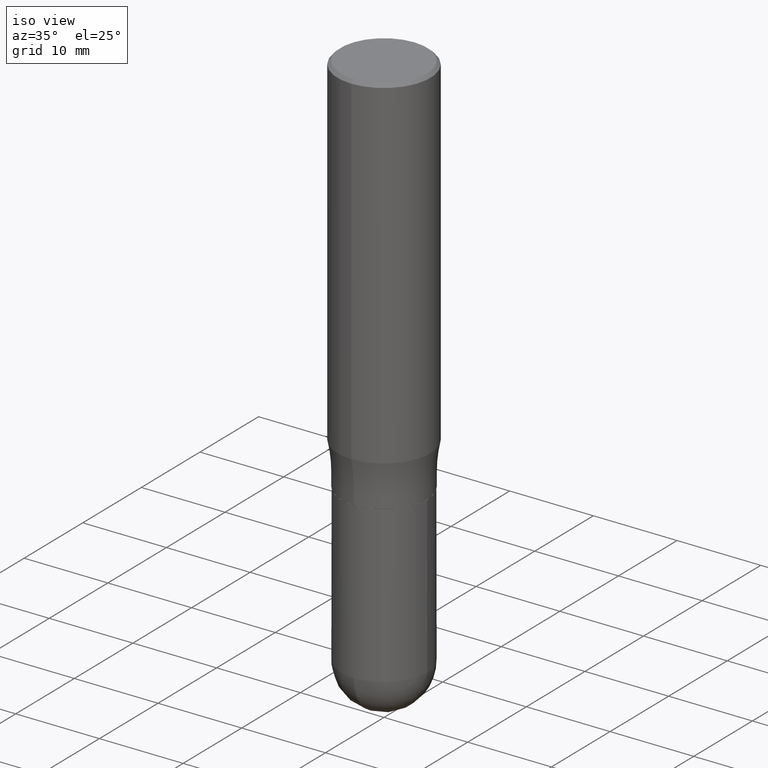
[diagram: clean part render]
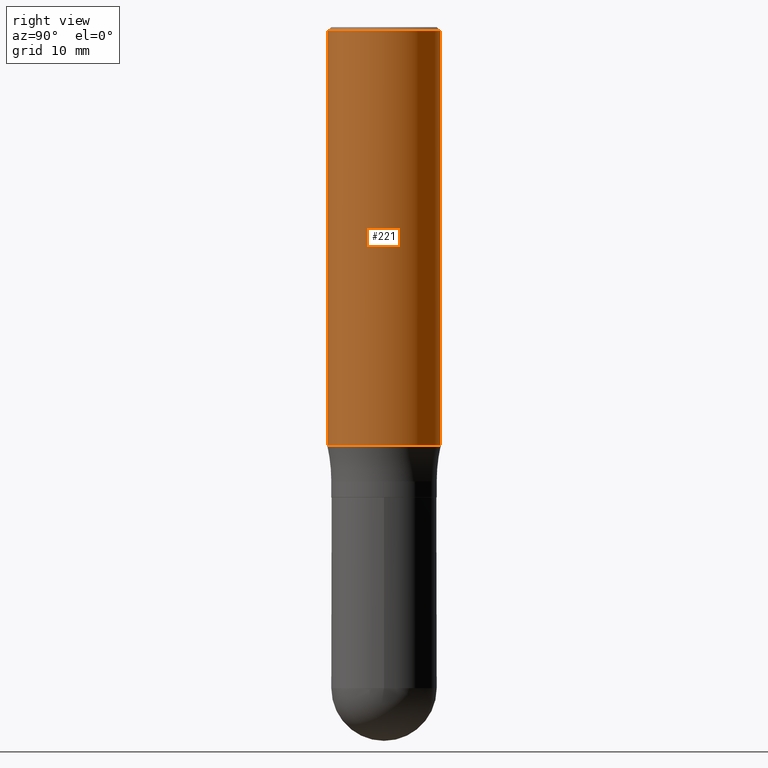
[diagram: tour spotlight — one face highlighted and labeled with its STEP entity id]
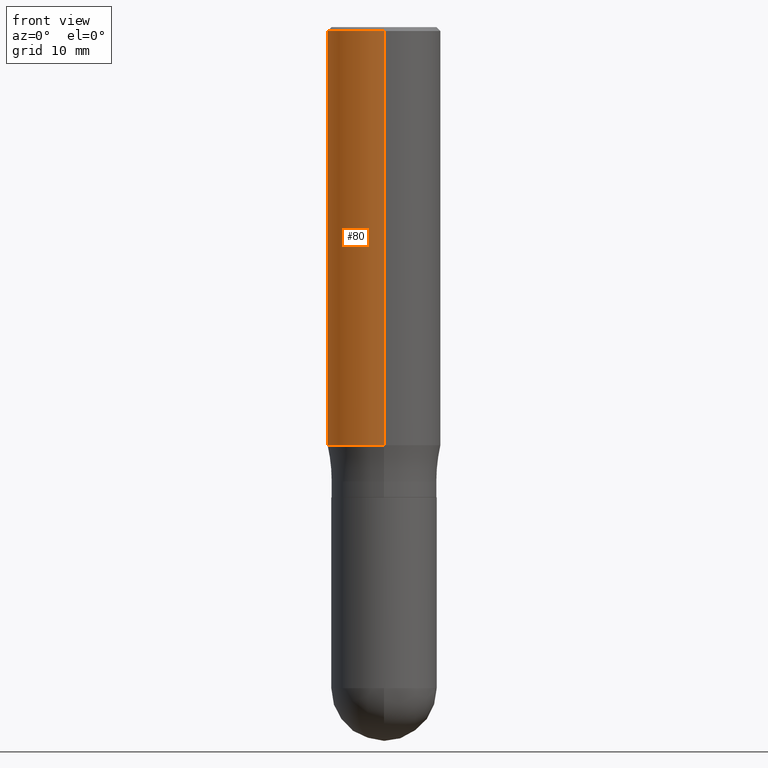
[diagram: tour spotlight — one face highlighted and labeled with its STEP entity id]
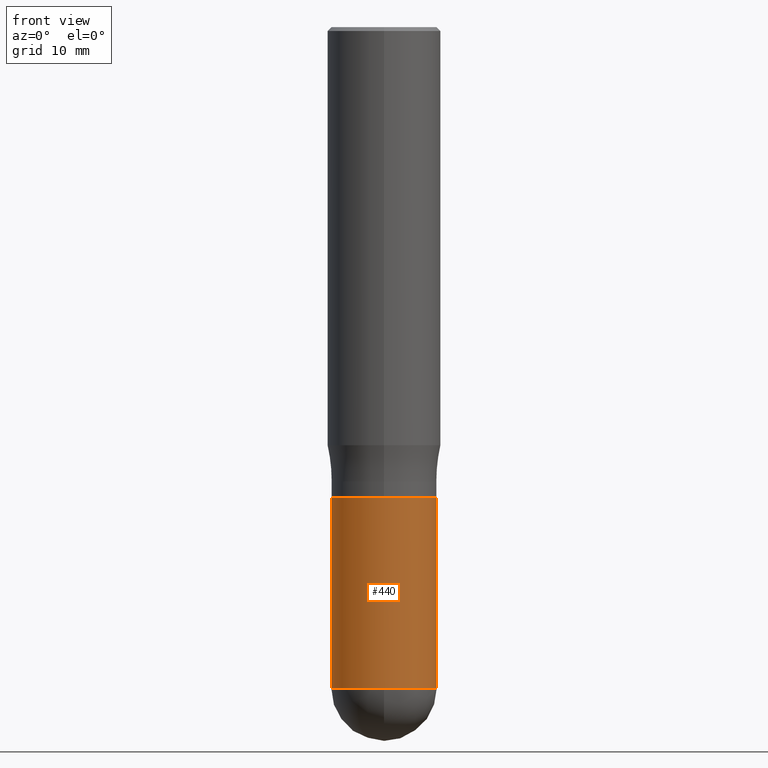
[diagram: tour spotlight — one face highlighted and labeled with its STEP entity id]
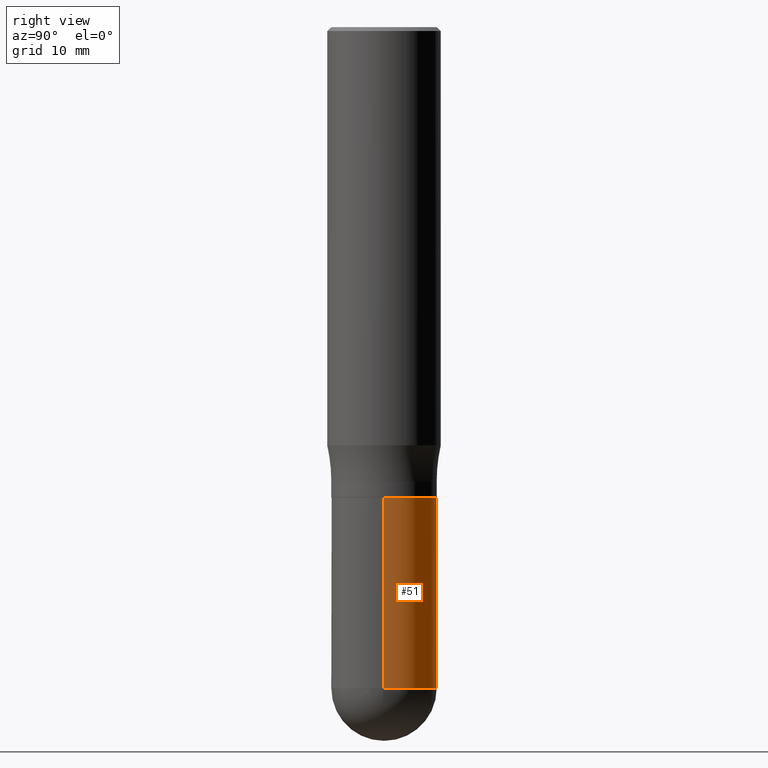
[diagram: tour spotlight — one face highlighted and labeled with its STEP entity id]
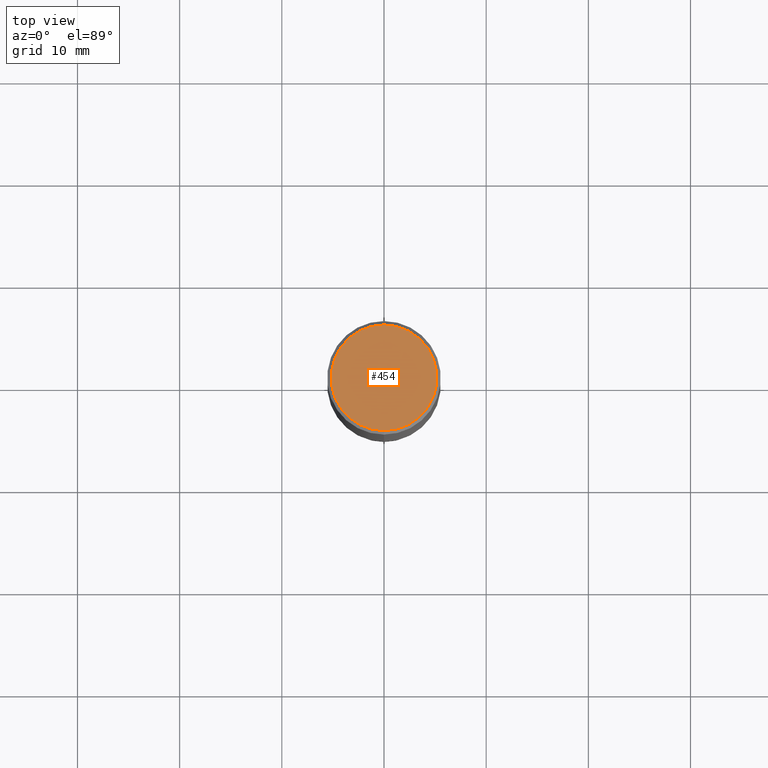
[diagram: tour spotlight — one face highlighted and labeled with its STEP entity id]
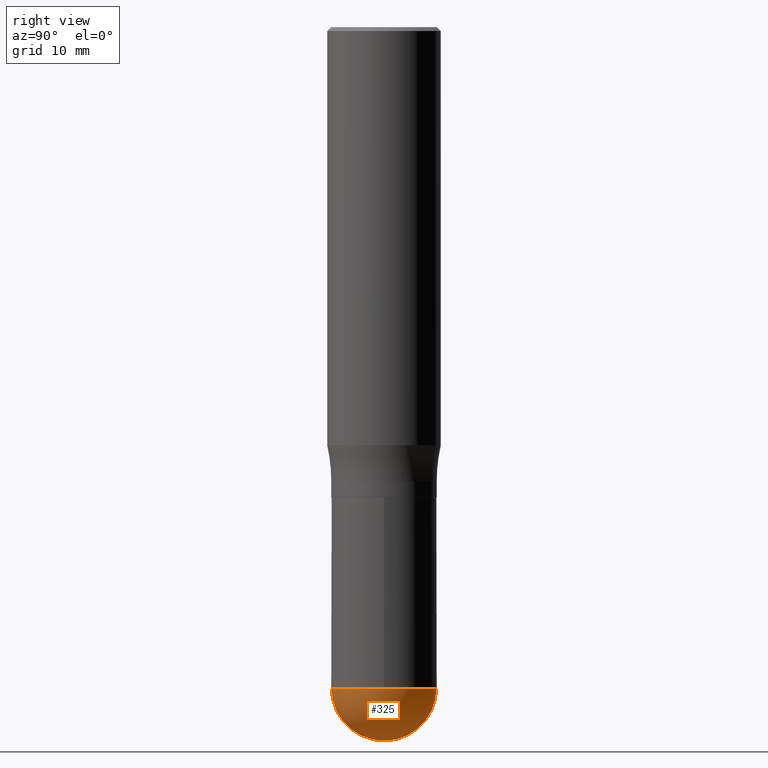
[diagram: tour spotlight — one face highlighted and labeled with its STEP entity id]
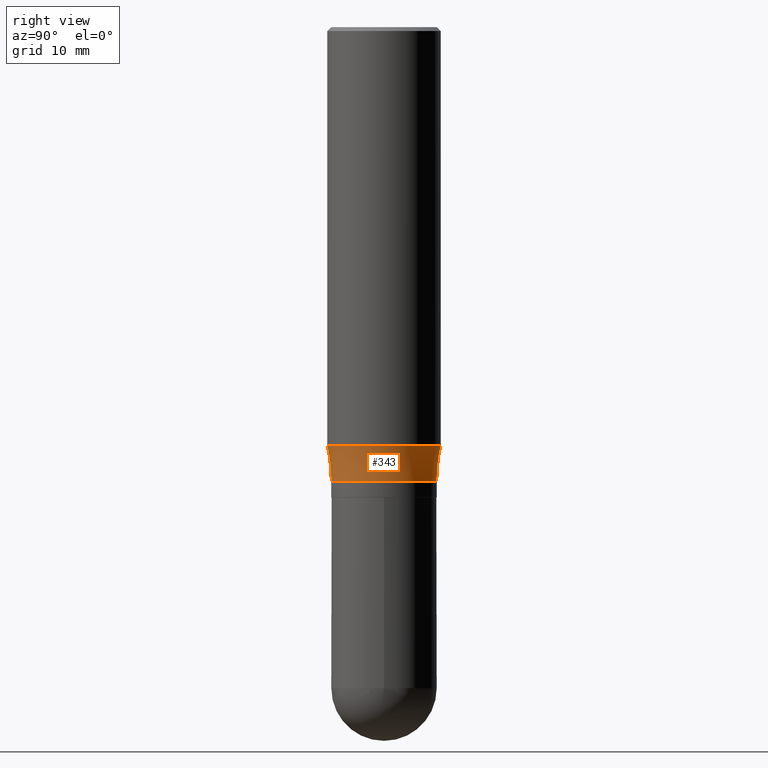
[diagram: tour spotlight — one face highlighted and labeled with its STEP entity id]
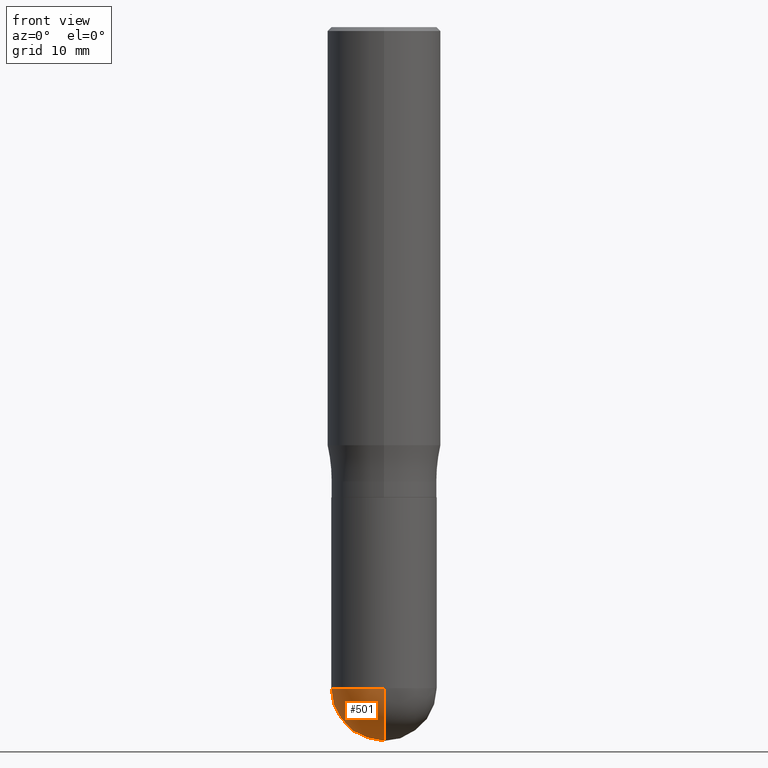
[diagram: tour spotlight — one face highlighted and labeled with its STEP entity id]
A machine part: a face-by-face anatomy tour. The part has 17 B-rep faces; the first image is the clean iso view, then the 8 largest visible faces are spotlighted one at a time (largest first), each with its STEP entity span.

Face 1 — right view, entity #221. In plain terms, the highlighted cylindrical surface (partial cylindrical patch) has radius 5.5562 mm, axis along (-0, 0, 1).
Definition (entity closure, byte-faithful):
#6 = VERTEX_POINT ( 'NONE', #283 ) ;
#11 = CARTESIAN_POINT ( 'NONE',  ( 0.000000000000000000, 0.000000000000000000, 0.000000000000000000 ) ) ;
#22 = DIRECTION ( 'NONE',  ( -2.444718999452591209E-29, 3.492555104760499256E-15, 1.000000000000000000 ) ) ;
#23 = ORIENTED_EDGE ( 'NONE', *, *, #174, .F. ) ;
#27 = DIRECTION ( 'NONE',  ( -2.444718999452591209E-29, 3.492555104760499256E-15, 1.000000000000000000 ) ) ;
#35 = EDGE_CURVE ( 'NONE', #187, #408, #378, .T. ) ;
#53 = DIRECTION ( 'NONE',  ( -2.444718999452591209E-29, 3.492555104760499256E-15, 1.000000000000000000 ) ) ;
#104 = ORIENTED_EDGE ( 'NONE', *, *, #494, .F. ) ;
#112 = EDGE_CURVE ( 'NONE', #408, #349, #193, .T. ) ;
#132 = AXIS2_PLACEMENT_3D ( 'NONE', #487, #53, #210 ) ;
#174 = EDGE_CURVE ( 'NONE', #187, #6, #388, .T. ) ;
#187 = VERTEX_POINT ( 'NONE', #435 ) ;
#193 = LINE ( 'NONE', #356, #340 ) ;
#201 = FACE_OUTER_BOUND ( 'NONE', #502, .T. ) ;
#207 = CARTESIAN_POINT ( 'NONE',  ( 1.527523085743871040E-15, 0.2187499999999999167, -0.01500000000000183478 ) ) ;
#210 = DIRECTION ( 'NONE',  ( -6.982962677686265922E-15, -1.000000000000000000, 3.746534391310990346E-15 ) ) ;
#221 = ADVANCED_FACE ( 'NONE', ( #201 ), #363, .T. ) ;
#235 = CARTESIAN_POINT ( 'NONE',  ( -1.527523085743870251E-15, -0.2187499999999999445, 7.639964291663590521E-16 ) ) ;
#246 = DIRECTION ( 'NONE',  ( -2.444718999452591209E-29, 3.492555104760499256E-15, 1.000000000000000000 ) ) ;
#271 = AXIS2_PLACEMENT_3D ( 'NONE', #11, #246, #405 ) ;
#272 = VECTOR ( 'NONE', #27, 39.37007874015748143 ) ;
#276 = DIRECTION ( 'NONE',  ( -2.444718999452591209E-29, 3.492555104760499256E-15, 1.000000000000000000 ) ) ;
#283 = CARTESIAN_POINT ( 'NONE',  ( -1.500733937012521740E-15, -0.2187500000000000555, -0.01500000000000030823 ) ) ;
#316 = CARTESIAN_POINT ( 'NONE',  ( 3.667078499179149276E-31, -5.238832657141123027E-17, -0.01500000000000107150 ) ) ;
#333 = AXIS2_PLACEMENT_3D ( 'NONE', #316, #22, #424 ) ;
#340 = VECTOR ( 'NONE', #276, 39.37007874015748143 ) ;
#349 = VERTEX_POINT ( 'NONE', #207 ) ;
#356 = CARTESIAN_POINT ( 'NONE',  ( 1.554312234475218565E-15, 0.2187499999999999445, -7.639964291663590521E-16 ) ) ;
#363 = CYLINDRICAL_SURFACE ( 'NONE', #271, 0.2187499999999999445 ) ;
#378 = CIRCLE ( 'NONE', #132, 0.2187499999999999445 ) ;
#388 = LINE ( 'NONE', #235, #272 ) ;
#390 = ORIENTED_EDGE ( 'NONE', *, *, #35, .T. ) ;
#405 = DIRECTION ( 'NONE',  ( -6.982962677686265922E-15, -1.000000000000000000, 3.492555104760499256E-15 ) ) ;
#408 = VERTEX_POINT ( 'NONE', #457 ) ;
#421 = CIRCLE ( 'NONE', #333, 0.2187500000000000000 ) ;
#424 = DIRECTION ( 'NONE',  ( -6.982962677686265133E-15, -1.000000000000000000, 3.492862791899308071E-15 ) ) ;
#435 = CARTESIAN_POINT ( 'NONE',  ( -1.527523085743830611E-15, -0.2187500000000055511, -1.611012311696324639 ) ) ;
#457 = CARTESIAN_POINT ( 'NONE',  ( 1.554312234475258205E-15, 0.2187499999999942824, -1.611012311696326194 ) ) ;
#476 = ORIENTED_EDGE ( 'NONE', *, *, #112, .T. ) ;
#487 = CARTESIAN_POINT ( 'NONE',  ( 3.938472406756047000E-29, -5.626549273047013922E-15, -1.611012311696325527 ) ) ;
#494 = EDGE_CURVE ( 'NONE', #6, #349, #421, .T. ) ;
#502 = EDGE_LOOP ( 'NONE', ( #390, #476, #104, #23 ) ) ;

Face 2 — front view, entity #80. In plain terms, the highlighted cylindrical surface (partial cylindrical patch) has radius 5.5562 mm, axis along (-0, 0, 1).
Definition (entity closure, byte-faithful):
#6 = VERTEX_POINT ( 'NONE', #283 ) ;
#12 = DIRECTION ( 'NONE',  ( -6.982962677686265133E-15, -1.000000000000000000, 3.492862791899308071E-15 ) ) ;
#17 = EDGE_CURVE ( 'NONE', #349, #6, #387, .T. ) ;
#21 = AXIS2_PLACEMENT_3D ( 'NONE', #362, #83, #364 ) ;
#27 = DIRECTION ( 'NONE',  ( -2.444718999452591209E-29, 3.492555104760499256E-15, 1.000000000000000000 ) ) ;
#32 = AXIS2_PLACEMENT_3D ( 'NONE', #56, #374, #377 ) ;
#37 = ORIENTED_EDGE ( 'NONE', *, *, #174, .T. ) ;
#40 = CYLINDRICAL_SURFACE ( 'NONE', #21, 0.2187499999999999445 ) ;
#56 = CARTESIAN_POINT ( 'NONE',  ( 3.938472406756047000E-29, -5.626549273047013922E-15, -1.611012311696325527 ) ) ;
#80 = ADVANCED_FACE ( 'NONE', ( #203 ), #40, .T. ) ;
#83 = DIRECTION ( 'NONE',  ( -2.444718999452591209E-29, 3.492555104760499256E-15, 1.000000000000000000 ) ) ;
#112 = EDGE_CURVE ( 'NONE', #408, #349, #193, .T. ) ;
#118 = DIRECTION ( 'NONE',  ( -2.444718999452591209E-29, 3.492555104760499256E-15, 1.000000000000000000 ) ) ;
#163 = CARTESIAN_POINT ( 'NONE',  ( 3.667078499179149276E-31, -5.238832657141123027E-17, -0.01500000000000107150 ) ) ;
#170 = AXIS2_PLACEMENT_3D ( 'NONE', #163, #118, #12 ) ;
#174 = EDGE_CURVE ( 'NONE', #187, #6, #388, .T. ) ;
#187 = VERTEX_POINT ( 'NONE', #435 ) ;
#193 = LINE ( 'NONE', #356, #340 ) ;
#203 = FACE_OUTER_BOUND ( 'NONE', #318, .T. ) ;
#204 = ORIENTED_EDGE ( 'NONE', *, *, #17, .F. ) ;
#207 = CARTESIAN_POINT ( 'NONE',  ( 1.527523085743871040E-15, 0.2187499999999999167, -0.01500000000000183478 ) ) ;
#235 = CARTESIAN_POINT ( 'NONE',  ( -1.527523085743870251E-15, -0.2187499999999999445, 7.639964291663590521E-16 ) ) ;
#248 = CIRCLE ( 'NONE', #32, 0.2187499999999999445 ) ;
#264 = ORIENTED_EDGE ( 'NONE', *, *, #419, .T. ) ;
#272 = VECTOR ( 'NONE', #27, 39.37007874015748143 ) ;
#275 = ORIENTED_EDGE ( 'NONE', *, *, #112, .F. ) ;
#276 = DIRECTION ( 'NONE',  ( -2.444718999452591209E-29, 3.492555104760499256E-15, 1.000000000000000000 ) ) ;
#283 = CARTESIAN_POINT ( 'NONE',  ( -1.500733937012521740E-15, -0.2187500000000000555, -0.01500000000000030823 ) ) ;
#318 = EDGE_LOOP ( 'NONE', ( #275, #264, #37, #204 ) ) ;
#340 = VECTOR ( 'NONE', #276, 39.37007874015748143 ) ;
#349 = VERTEX_POINT ( 'NONE', #207 ) ;
#356 = CARTESIAN_POINT ( 'NONE',  ( 1.554312234475218565E-15, 0.2187499999999999445, -7.639964291663590521E-16 ) ) ;
#362 = CARTESIAN_POINT ( 'NONE',  ( 0.000000000000000000, 0.000000000000000000, 0.000000000000000000 ) ) ;
#364 = DIRECTION ( 'NONE',  ( -6.982962677686265922E-15, -1.000000000000000000, 3.492555104760499256E-15 ) ) ;
#374 = DIRECTION ( 'NONE',  ( -2.444718999452591209E-29, 3.492555104760499256E-15, 1.000000000000000000 ) ) ;
#377 = DIRECTION ( 'NONE',  ( -6.982962677686265922E-15, -1.000000000000000000, 3.746534391310990346E-15 ) ) ;
#387 = CIRCLE ( 'NONE', #170, 0.2187500000000000000 ) ;
#388 = LINE ( 'NONE', #235, #272 ) ;
#408 = VERTEX_POINT ( 'NONE', #457 ) ;
#419 = EDGE_CURVE ( 'NONE', #408, #187, #248, .T. ) ;
#435 = CARTESIAN_POINT ( 'NONE',  ( -1.527523085743830611E-15, -0.2187500000000055511, -1.611012311696324639 ) ) ;
#457 = CARTESIAN_POINT ( 'NONE',  ( 1.554312234475258205E-15, 0.2187499999999942824, -1.611012311696326194 ) ) ;

Face 3 — front view, entity #440. In plain terms, the highlighted cylindrical surface (partial cylindrical patch) has radius 5.1587 mm, axis along (-0, 0, 1).
Definition (entity closure, byte-faithful):
#5 = CARTESIAN_POINT ( 'NONE',  ( 0.2031000000000000583, -7.744803905821861355E-15, -1.812000000000000055 ) ) ;
#13 = AXIS2_PLACEMENT_3D ( 'NONE', #95, #20, #57 ) ;
#18 = VECTOR ( 'NONE', #131, 39.37007874015748143 ) ;
#20 = DIRECTION ( 'NONE',  ( -2.445468806185136597E-29, 3.491481338843145583E-15, 1.000000000000000000 ) ) ;
#28 = ORIENTED_EDGE ( 'NONE', *, *, #91, .T. ) ;
#39 = CARTESIAN_POINT ( 'NONE',  ( -0.2031000000000000583, -6.166396707612929754E-15, -1.812000000000000055 ) ) ;
#44 = ORIENTED_EDGE ( 'NONE', *, *, #361, .T. ) ;
#50 = VERTEX_POINT ( 'NONE', #93 ) ;
#57 = DIRECTION ( 'NONE',  ( 1.000000000000000000, -6.982962677686262766E-15, 0.000000000000000000 ) ) ;
#74 = LINE ( 'NONE', #238, #96 ) ;
#91 = EDGE_CURVE ( 'NONE', #50, #508, #469, .T. ) ;
#93 = CARTESIAN_POINT ( 'NONE',  ( -0.2031000000000000583, -6.166396707612929754E-15, -2.546899999999999942 ) ) ;
#95 = CARTESIAN_POINT ( 'NONE',  ( 6.228364502472924746E-29, -8.892453821899607499E-15, -2.546899999999999942 ) ) ;
#96 = VECTOR ( 'NONE', #186, 39.37007874015748143 ) ;
#108 = ORIENTED_EDGE ( 'NONE', *, *, #368, .F. ) ;
#131 = DIRECTION ( 'NONE',  ( -2.445468806185136877E-29, 3.491481338843145188E-15, 1.000000000000000000 ) ) ;
#141 = EDGE_LOOP ( 'NONE', ( #320, #28, #382, #44, #108 ) ) ;
#186 = DIRECTION ( 'NONE',  ( -2.445468806185136877E-29, 3.491481338843145188E-15, 1.000000000000000000 ) ) ;
#200 = CIRCLE ( 'NONE', #466, 0.2031000000000000583 ) ;
#202 = EDGE_CURVE ( 'NONE', #50, #226, #74, .T. ) ;
#213 = FACE_OUTER_BOUND ( 'NONE', #141, .T. ) ;
#220 = CARTESIAN_POINT ( 'NONE',  ( 0.2031000000000000583, -9.027748723779773632E-15, -2.546899999999999942 ) ) ;
#226 = VERTEX_POINT ( 'NONE', #39 ) ;
#238 = CARTESIAN_POINT ( 'NONE',  ( -0.2031000000000000583, 1.443112296328763891E-15, -9.990357168307717005E-30 ) ) ;
#247 = CIRCLE ( 'NONE', #13, 0.2031000000000000583 ) ;
#278 = VERTEX_POINT ( 'NONE', #5 ) ;
#291 = AXIS2_PLACEMENT_3D ( 'NONE', #420, #301, #491 ) ;
#301 = DIRECTION ( 'NONE',  ( -2.445468806185136597E-29, 3.491481338843145583E-15, 1.000000000000000000 ) ) ;
#314 = AXIS2_PLACEMENT_3D ( 'NONE', #329, #433, #511 ) ;
#320 = ORIENTED_EDGE ( 'NONE', *, *, #202, .F. ) ;
#329 = CARTESIAN_POINT ( 'NONE',  ( 6.228364502472924746E-29, -8.892453821899607499E-15, -2.546899999999999942 ) ) ;
#361 = EDGE_CURVE ( 'NONE', #431, #278, #453, .T. ) ;
#368 = EDGE_CURVE ( 'NONE', #226, #278, #200, .T. ) ;
#375 = EDGE_CURVE ( 'NONE', #508, #431, #247, .T. ) ;
#382 = ORIENTED_EDGE ( 'NONE', *, *, #375, .T. ) ;
#420 = CARTESIAN_POINT ( 'NONE',  ( 0.000000000000000000, 0.000000000000000000, 0.000000000000000000 ) ) ;
#427 = CARTESIAN_POINT ( 'NONE',  ( -1.443112296328701966E-15, -0.2031000000000090233, -2.546899999999999498 ) ) ;
#431 = VERTEX_POINT ( 'NONE', #220 ) ;
#433 = DIRECTION ( 'NONE',  ( -2.445468806185136597E-29, 3.491481338843145583E-15, 1.000000000000000000 ) ) ;
#440 = ADVANCED_FACE ( 'NONE', ( #213 ), #456, .T. ) ;
#453 = LINE ( 'NONE', #493, #18 ) ;
#456 = CYLINDRICAL_SURFACE ( 'NONE', #291, 0.2031000000000000583 ) ;
#458 = DIRECTION ( 'NONE',  ( -2.445468806185136597E-29, 3.491481338843145583E-15, 1.000000000000000000 ) ) ;
#461 = CARTESIAN_POINT ( 'NONE',  ( 4.431189476807467280E-29, -6.326564185983779791E-15, -1.812000000000000055 ) ) ;
#466 = AXIS2_PLACEMENT_3D ( 'NONE', #461, #458, #495 ) ;
#469 = CIRCLE ( 'NONE', #314, 0.2031000000000000583 ) ;
#491 = DIRECTION ( 'NONE',  ( 1.000000000000000000, -6.982962677686265922E-15, 4.876176775795935232E-29 ) ) ;
#493 = CARTESIAN_POINT ( 'NONE',  ( 0.2031000000000000583, -1.418239719838080972E-15, 9.903515031641547546E-30 ) ) ;
#495 = DIRECTION ( 'NONE',  ( 1.000000000000000000, -6.982962677686267499E-15, 0.000000000000000000 ) ) ;
#508 = VERTEX_POINT ( 'NONE', #427 ) ;
#511 = DIRECTION ( 'NONE',  ( 1.000000000000000000, -6.982962677686262766E-15, 0.000000000000000000 ) ) ;

Face 4 — right view, entity #51. In plain terms, the highlighted cylindrical surface (partial cylindrical patch) has radius 5.1587 mm, axis along (-0, 0, 1).
Definition (entity closure, byte-faithful):
#5 = CARTESIAN_POINT ( 'NONE',  ( 0.2031000000000000583, -7.744803905821861355E-15, -1.812000000000000055 ) ) ;
#15 = DIRECTION ( 'NONE',  ( 1.000000000000000000, -6.982962677686265922E-15, 4.876176775795935232E-29 ) ) ;
#16 = CARTESIAN_POINT ( 'NONE',  ( 6.228364502472924746E-29, -8.892453821899607499E-15, -2.546899999999999942 ) ) ;
#18 = VECTOR ( 'NONE', #131, 39.37007874015748143 ) ;
#39 = CARTESIAN_POINT ( 'NONE',  ( -0.2031000000000000583, -6.166396707612929754E-15, -1.812000000000000055 ) ) ;
#49 = DIRECTION ( 'NONE',  ( -2.445468806185136597E-29, 3.491481338843145583E-15, 1.000000000000000000 ) ) ;
#50 = VERTEX_POINT ( 'NONE', #93 ) ;
#51 = ADVANCED_FACE ( 'NONE', ( #288 ), #415, .T. ) ;
#72 = CIRCLE ( 'NONE', #297, 0.2031000000000000583 ) ;
#74 = LINE ( 'NONE', #238, #96 ) ;
#93 = CARTESIAN_POINT ( 'NONE',  ( -0.2031000000000000583, -6.166396707612929754E-15, -2.546899999999999942 ) ) ;
#96 = VECTOR ( 'NONE', #186, 39.37007874015748143 ) ;
#125 = DIRECTION ( 'NONE',  ( 1.000000000000000000, -6.982962677686267499E-15, 0.000000000000000000 ) ) ;
#131 = DIRECTION ( 'NONE',  ( -2.445468806185136877E-29, 3.491481338843145188E-15, 1.000000000000000000 ) ) ;
#143 = ORIENTED_EDGE ( 'NONE', *, *, #423, .T. ) ;
#152 = CARTESIAN_POINT ( 'NONE',  ( 4.431189476807467280E-29, -6.326564185983779791E-15, -1.812000000000000055 ) ) ;
#173 = DIRECTION ( 'NONE',  ( -2.445468806185136597E-29, 3.491481338843145583E-15, 1.000000000000000000 ) ) ;
#180 = CARTESIAN_POINT ( 'NONE',  ( 6.228364502472924746E-29, -8.892453821899607499E-15, -2.546899999999999942 ) ) ;
#186 = DIRECTION ( 'NONE',  ( -2.445468806185136877E-29, 3.491481338843145188E-15, 1.000000000000000000 ) ) ;
#199 = CARTESIAN_POINT ( 'NONE',  ( 0.000000000000000000, 0.000000000000000000, 0.000000000000000000 ) ) ;
#202 = EDGE_CURVE ( 'NONE', #50, #226, #74, .T. ) ;
#220 = CARTESIAN_POINT ( 'NONE',  ( 0.2031000000000000583, -9.027748723779773632E-15, -2.546899999999999942 ) ) ;
#223 = ORIENTED_EDGE ( 'NONE', *, *, #335, .F. ) ;
#226 = VERTEX_POINT ( 'NONE', #39 ) ;
#238 = CARTESIAN_POINT ( 'NONE',  ( -0.2031000000000000583, 1.443112296328763891E-15, -9.990357168307717005E-30 ) ) ;
#253 = ORIENTED_EDGE ( 'NONE', *, *, #361, .F. ) ;
#255 = DIRECTION ( 'NONE',  ( -2.445468806185136597E-29, 3.491481338843145583E-15, 1.000000000000000000 ) ) ;
#278 = VERTEX_POINT ( 'NONE', #5 ) ;
#288 = FACE_OUTER_BOUND ( 'NONE', #330, .T. ) ;
#297 = AXIS2_PLACEMENT_3D ( 'NONE', #152, #49, #125 ) ;
#310 = CIRCLE ( 'NONE', #447, 0.2031000000000000583 ) ;
#330 = EDGE_LOOP ( 'NONE', ( #143, #385, #223, #253, #465 ) ) ;
#335 = EDGE_CURVE ( 'NONE', #278, #226, #72, .T. ) ;
#344 = DIRECTION ( 'NONE',  ( 1.000000000000000000, -6.982962677686262766E-15, 0.000000000000000000 ) ) ;
#345 = DIRECTION ( 'NONE',  ( 1.000000000000000000, -6.982962677686262766E-15, 0.000000000000000000 ) ) ;
#355 = EDGE_CURVE ( 'NONE', #431, #499, #460, .T. ) ;
#361 = EDGE_CURVE ( 'NONE', #431, #278, #453, .T. ) ;
#385 = ORIENTED_EDGE ( 'NONE', *, *, #202, .T. ) ;
#407 = AXIS2_PLACEMENT_3D ( 'NONE', #199, #255, #15 ) ;
#415 = CYLINDRICAL_SURFACE ( 'NONE', #407, 0.2031000000000000583 ) ;
#423 = EDGE_CURVE ( 'NONE', #499, #50, #310, .T. ) ;
#430 = AXIS2_PLACEMENT_3D ( 'NONE', #180, #489, #345 ) ;
#431 = VERTEX_POINT ( 'NONE', #220 ) ;
#447 = AXIS2_PLACEMENT_3D ( 'NONE', #16, #173, #344 ) ;
#453 = LINE ( 'NONE', #493, #18 ) ;
#460 = CIRCLE ( 'NONE', #430, 0.2031000000000000583 ) ;
#465 = ORIENTED_EDGE ( 'NONE', *, *, #355, .T. ) ;
#489 = DIRECTION ( 'NONE',  ( -2.445468806185136597E-29, 3.491481338843145583E-15, 1.000000000000000000 ) ) ;
#493 = CARTESIAN_POINT ( 'NONE',  ( 0.2031000000000000583, -1.418239719838080972E-15, 9.903515031641547546E-30 ) ) ;
#499 = VERTEX_POINT ( 'NONE', #510 ) ;
#510 = CARTESIAN_POINT ( 'NONE',  ( 1.418239719838143884E-15, 0.2030999999999912597, -2.546900000000000830 ) ) ;

Face 5 — top view, entity #454. In plain terms, the highlighted planar face has unit normal (0, -0, -1).
Definition (entity closure, byte-faithful):
#34 = VERTEX_POINT ( 'NONE', #338 ) ;
#55 = DIRECTION ( 'NONE',  ( -2.444718999452591209E-29, 3.492555104760499256E-15, 1.000000000000000000 ) ) ;
#61 = DIRECTION ( 'NONE',  ( 2.444718999452590928E-29, -3.492555104760499256E-15, -1.000000000000000000 ) ) ;
#99 = FACE_OUTER_BOUND ( 'NONE', #273, .T. ) ;
#134 = DIRECTION ( 'NONE',  ( -6.982962677686265133E-15, -1.000000000000000000, 3.492555104760498862E-15 ) ) ;
#144 = EDGE_CURVE ( 'NONE', #34, #350, #376, .T. ) ;
#183 = ORIENTED_EDGE ( 'NONE', *, *, #144, .T. ) ;
#189 = CARTESIAN_POINT ( 'NONE',  ( 2.620031829638276978E-44, -3.743009132455350096E-30, -1.071710830661904651E-15 ) ) ;
#261 = PLANE ( 'NONE',  #505 ) ;
#266 = AXIS2_PLACEMENT_3D ( 'NONE', #189, #506, #470 ) ;
#273 = EDGE_LOOP ( 'NONE', ( #370, #183 ) ) ;
#299 = CARTESIAN_POINT ( 'NONE',  ( 2.620031829638276978E-44, -3.743009132455350096E-30, -1.071710830661904651E-15 ) ) ;
#338 = CARTESIAN_POINT ( 'NONE',  ( -1.449280202029235538E-15, -0.2037499999999999867, -3.601027280669530270E-16 ) ) ;
#341 = CARTESIAN_POINT ( 'NONE',  ( 1.475150865661223764E-15, 0.2037499999999999867, -1.783318933256856177E-15 ) ) ;
#350 = VERTEX_POINT ( 'NONE', #341 ) ;
#351 = DIRECTION ( 'NONE',  ( 6.982962677686265922E-15, 1.000000000000000000, -3.492555104760499256E-15 ) ) ;
#353 = AXIS2_PLACEMENT_3D ( 'NONE', #299, #55, #134 ) ;
#370 = ORIENTED_EDGE ( 'NONE', *, *, #389, .T. ) ;
#376 = CIRCLE ( 'NONE', #266, 0.2037499999999999867 ) ;
#389 = EDGE_CURVE ( 'NONE', #350, #34, #467, .T. ) ;
#422 = CARTESIAN_POINT ( 'NONE',  ( 1.422778645578576487E-15, 0.2037499999999999867, -1.247463517925903950E-15 ) ) ;
#454 = ADVANCED_FACE ( 'NONE', ( #99 ), #261, .F. ) ;
#467 = CIRCLE ( 'NONE', #353, 0.2037499999999999867 ) ;
#470 = DIRECTION ( 'NONE',  ( -6.982962677686265133E-15, -1.000000000000000000, 3.492555104760498862E-15 ) ) ;
#505 = AXIS2_PLACEMENT_3D ( 'NONE', #422, #61, #351 ) ;
#506 = DIRECTION ( 'NONE',  ( -2.444718999452591209E-29, 3.492555104760499256E-15, 1.000000000000000000 ) ) ;

Face 6 — right view, entity #325. In plain terms, the highlighted spherical surface has radius 5.1587 mm.
Definition (entity closure, byte-faithful):
#9 = ORIENTED_EDGE ( 'NONE', *, *, #355, .F. ) ;
#13 = AXIS2_PLACEMENT_3D ( 'NONE', #95, #20, #57 ) ;
#20 = DIRECTION ( 'NONE',  ( -2.445468806185136597E-29, 3.491481338843145583E-15, 1.000000000000000000 ) ) ;
#45 = VERTEX_POINT ( 'NONE', #129 ) ;
#47 = CARTESIAN_POINT ( 'NONE',  ( 6.232375232369175849E-29, -8.886710228411606040E-15, -2.546899999999999942 ) ) ;
#57 = DIRECTION ( 'NONE',  ( 1.000000000000000000, -6.982962677686262766E-15, 0.000000000000000000 ) ) ;
#62 = ORIENTED_EDGE ( 'NONE', *, *, #317, .F. ) ;
#95 = CARTESIAN_POINT ( 'NONE',  ( 6.228364502472924746E-29, -8.892453821899607499E-15, -2.546899999999999942 ) ) ;
#109 = AXIS2_PLACEMENT_3D ( 'NONE', #47, #155, #319 ) ;
#121 = DIRECTION ( 'NONE',  ( -1.000000000000000000, 7.105427357601001070E-15, -4.926315508542082329E-29 ) ) ;
#129 = CARTESIAN_POINT ( 'NONE',  ( 6.737734160571993830E-29, -9.583393800085308814E-15, -2.750000000000000444 ) ) ;
#155 = DIRECTION ( 'NONE',  ( 1.000000000000000000, -6.982962677686265922E-15, 4.883557194083112340E-29 ) ) ;
#178 = CIRCLE ( 'NONE', #225, 0.2031000000000002248 ) ;
#180 = CARTESIAN_POINT ( 'NONE',  ( 6.228364502472924746E-29, -8.892453821899607499E-15, -2.546899999999999942 ) ) ;
#195 = CARTESIAN_POINT ( 'NONE',  ( 6.232375232369175849E-29, -8.886710228411606040E-15, -2.546899999999999942 ) ) ;
#211 = EDGE_CURVE ( 'NONE', #45, #499, #384, .T. ) ;
#220 = CARTESIAN_POINT ( 'NONE',  ( 0.2031000000000000583, -9.027748723779773632E-15, -2.546899999999999942 ) ) ;
#225 = AXIS2_PLACEMENT_3D ( 'NONE', #195, #121, #331 ) ;
#233 = ORIENTED_EDGE ( 'NONE', *, *, #211, .T. ) ;
#247 = CIRCLE ( 'NONE', #13, 0.2031000000000000583 ) ;
#282 = SPHERICAL_SURFACE ( 'NONE', #394, 0.2031000000000002248 ) ;
#285 = ORIENTED_EDGE ( 'NONE', *, *, #375, .F. ) ;
#287 = CARTESIAN_POINT ( 'NONE',  ( 6.232375232369175849E-29, -8.886710228411606040E-15, -2.546899999999999942 ) ) ;
#317 = EDGE_CURVE ( 'NONE', #45, #508, #178, .T. ) ;
#319 = DIRECTION ( 'NONE',  ( 6.982962677686265133E-15, 1.000000000000000000, 0.000000000000000000 ) ) ;
#325 = ADVANCED_FACE ( 'NONE', ( #358 ), #282, .T. ) ;
#331 = DIRECTION ( 'NONE',  ( -7.105427357601001070E-15, -1.000000000000000000, 0.000000000000000000 ) ) ;
#345 = DIRECTION ( 'NONE',  ( 1.000000000000000000, -6.982962677686262766E-15, 0.000000000000000000 ) ) ;
#355 = EDGE_CURVE ( 'NONE', #431, #499, #460, .T. ) ;
#358 = FACE_OUTER_BOUND ( 'NONE', #403, .T. ) ;
#375 = EDGE_CURVE ( 'NONE', #508, #431, #247, .T. ) ;
#384 = CIRCLE ( 'NONE', #109, 0.2031000000000002248 ) ;
#394 = AXIS2_PLACEMENT_3D ( 'NONE', #287, #483, #442 ) ;
#403 = EDGE_LOOP ( 'NONE', ( #62, #233, #9, #285 ) ) ;
#427 = CARTESIAN_POINT ( 'NONE',  ( -1.443112296328701966E-15, -0.2031000000000090233, -2.546899999999999498 ) ) ;
#430 = AXIS2_PLACEMENT_3D ( 'NONE', #180, #489, #345 ) ;
#431 = VERTEX_POINT ( 'NONE', #220 ) ;
#442 = DIRECTION ( 'NONE',  ( 6.982962677686265133E-15, 1.000000000000000000, -2.690150658458158759E-15 ) ) ;
#460 = CIRCLE ( 'NONE', #430, 0.2031000000000000583 ) ;
#483 = DIRECTION ( 'NONE',  ( -1.000000000000000000, 6.982962677686265133E-15, -4.883557194083112340E-29 ) ) ;
#489 = DIRECTION ( 'NONE',  ( -2.445468806185136597E-29, 3.491481338843145583E-15, 1.000000000000000000 ) ) ;
#499 = VERTEX_POINT ( 'NONE', #510 ) ;
#508 = VERTEX_POINT ( 'NONE', #427 ) ;
#510 = CARTESIAN_POINT ( 'NONE',  ( 1.418239719838143884E-15, 0.2030999999999912597, -2.546900000000000830 ) ) ;

Face 7 — right view, entity #343. In plain terms, the highlighted toroidal blend (fillet) surface has major radius 21.0337 mm and minor (blend) radius 15.875 mm.
Definition (entity closure, byte-faithful):
#35 = EDGE_CURVE ( 'NONE', #187, #408, #378, .T. ) ;
#52 = DIRECTION ( 'NONE',  ( -6.982962677686266711E-15, -1.000000000000000000, 3.492555104760498862E-15 ) ) ;
#53 = DIRECTION ( 'NONE',  ( -2.444718999452591209E-29, 3.492555104760499256E-15, 1.000000000000000000 ) ) ;
#58 = CIRCLE ( 'NONE', #347, 0.6250000000000000000 ) ;
#64 = VERTEX_POINT ( 'NONE', #172 ) ;
#76 = ORIENTED_EDGE ( 'NONE', *, *, #312, .F. ) ;
#82 = CARTESIAN_POINT ( 'NONE',  ( 4.279570410823991286E-29, -6.110092342975507826E-15, -1.750000000000001110 ) ) ;
#86 = CARTESIAN_POINT ( 'NONE',  ( -5.782591393391955660E-15, -0.8281000000000063865, -1.749999999999998002 ) ) ;
#120 = ORIENTED_EDGE ( 'NONE', *, *, #256, .T. ) ;
#130 = TOROIDAL_SURFACE ( 'NONE', #281, 0.8281000000000002803, 0.6250000000000000000 ) ;
#132 = AXIS2_PLACEMENT_3D ( 'NONE', #487, #53, #210 ) ;
#150 = EDGE_LOOP ( 'NONE', ( #76, #208, #120, #311 ) ) ;
#158 = DIRECTION ( 'NONE',  ( -1.000000000000000000, 6.982962677686265922E-15, -4.883557194083112340E-29 ) ) ;
#166 = DIRECTION ( 'NONE',  ( 7.105427357600999492E-15, 1.000000000000000000, 0.000000000000000000 ) ) ;
#171 = DIRECTION ( 'NONE',  ( -2.444718999452591209E-29, 3.492555104760499256E-15, 1.000000000000000000 ) ) ;
#172 = CARTESIAN_POINT ( 'NONE',  ( -1.418239719838039360E-15, -0.2031000000000063310, -1.750000000000000000 ) ) ;
#179 = CARTESIAN_POINT ( 'NONE',  ( 4.278258249042036437E-29, -6.111971433330876361E-15, -1.750000000000000666 ) ) ;
#187 = VERTEX_POINT ( 'NONE', #435 ) ;
#205 = DIRECTION ( 'NONE',  ( -6.982962677686265133E-15, -1.000000000000000000, 0.000000000000000000 ) ) ;
#208 = ORIENTED_EDGE ( 'NONE', *, *, #35, .F. ) ;
#210 = DIRECTION ( 'NONE',  ( -6.982962677686265922E-15, -1.000000000000000000, 3.746534391310990346E-15 ) ) ;
#212 = DIRECTION ( 'NONE',  ( -6.982962677686265133E-15, -1.000000000000000000, 4.035225987687237941E-15 ) ) ;
#217 = CIRCLE ( 'NONE', #263, 0.2031000000000002248 ) ;
#256 = EDGE_CURVE ( 'NONE', #187, #64, #404, .T. ) ;
#263 = AXIS2_PLACEMENT_3D ( 'NONE', #179, #171, #212 ) ;
#281 = AXIS2_PLACEMENT_3D ( 'NONE', #82, #337, #52 ) ;
#311 = ORIENTED_EDGE ( 'NONE', *, *, #412, .T. ) ;
#312 = EDGE_CURVE ( 'NONE', #408, #504, #58, .T. ) ;
#337 = DIRECTION ( 'NONE',  ( -2.444718999452591209E-29, 3.492555104760499256E-15, 1.000000000000000000 ) ) ;
#343 = ADVANCED_FACE ( 'NONE', ( #451 ), #130, .F. ) ;
#347 = AXIS2_PLACEMENT_3D ( 'NONE', #477, #414, #166 ) ;
#378 = CIRCLE ( 'NONE', #132, 0.2187499999999999445 ) ;
#383 = CARTESIAN_POINT ( 'NONE',  ( 1.498712265402032939E-15, 0.2030999999999941186, -1.750000000000001554 ) ) ;
#404 = CIRCLE ( 'NONE', #497, 0.6250000000000000000 ) ;
#408 = VERTEX_POINT ( 'NONE', #457 ) ;
#412 = EDGE_CURVE ( 'NONE', #64, #504, #217, .T. ) ;
#414 = DIRECTION ( 'NONE',  ( 1.000000000000000000, -7.105427357601001070E-15, 4.926328658382019374E-29 ) ) ;
#435 = CARTESIAN_POINT ( 'NONE',  ( -1.527523085743830611E-15, -0.2187500000000055511, -1.611012311696324639 ) ) ;
#451 = FACE_OUTER_BOUND ( 'NONE', #150, .T. ) ;
#457 = CARTESIAN_POINT ( 'NONE',  ( 1.554312234475258205E-15, 0.2187499999999942824, -1.611012311696326194 ) ) ;
#477 = CARTESIAN_POINT ( 'NONE',  ( 5.884004394829433441E-15, 0.8280999999999940631, -1.750000000000003997 ) ) ;
#487 = CARTESIAN_POINT ( 'NONE',  ( 3.938472406756047000E-29, -5.626549273047013922E-15, -1.611012311696325527 ) ) ;
#497 = AXIS2_PLACEMENT_3D ( 'NONE', #86, #158, #205 ) ;
#504 = VERTEX_POINT ( 'NONE', #383 ) ;

Face 8 — front view, entity #501. In plain terms, the highlighted spherical surface has radius 5.1587 mm.
Definition (entity closure, byte-faithful):
#16 = CARTESIAN_POINT ( 'NONE',  ( 6.228364502472924746E-29, -8.892453821899607499E-15, -2.546899999999999942 ) ) ;
#45 = VERTEX_POINT ( 'NONE', #129 ) ;
#47 = CARTESIAN_POINT ( 'NONE',  ( 6.232375232369175849E-29, -8.886710228411606040E-15, -2.546899999999999942 ) ) ;
#50 = VERTEX_POINT ( 'NONE', #93 ) ;
#91 = EDGE_CURVE ( 'NONE', #50, #508, #469, .T. ) ;
#93 = CARTESIAN_POINT ( 'NONE',  ( -0.2031000000000000583, -6.166396707612929754E-15, -2.546899999999999942 ) ) ;
#100 = AXIS2_PLACEMENT_3D ( 'NONE', #346, #500, #472 ) ;
#109 = AXIS2_PLACEMENT_3D ( 'NONE', #47, #155, #319 ) ;
#111 = ORIENTED_EDGE ( 'NONE', *, *, #211, .F. ) ;
#121 = DIRECTION ( 'NONE',  ( -1.000000000000000000, 7.105427357601001070E-15, -4.926315508542082329E-29 ) ) ;
#129 = CARTESIAN_POINT ( 'NONE',  ( 6.737734160571993830E-29, -9.583393800085308814E-15, -2.750000000000000444 ) ) ;
#139 = FACE_OUTER_BOUND ( 'NONE', #156, .T. ) ;
#149 = ORIENTED_EDGE ( 'NONE', *, *, #91, .F. ) ;
#153 = ORIENTED_EDGE ( 'NONE', *, *, #317, .T. ) ;
#155 = DIRECTION ( 'NONE',  ( 1.000000000000000000, -6.982962677686265922E-15, 4.883557194083112340E-29 ) ) ;
#156 = EDGE_LOOP ( 'NONE', ( #111, #153, #149, #464 ) ) ;
#173 = DIRECTION ( 'NONE',  ( -2.445468806185136597E-29, 3.491481338843145583E-15, 1.000000000000000000 ) ) ;
#178 = CIRCLE ( 'NONE', #225, 0.2031000000000002248 ) ;
#195 = CARTESIAN_POINT ( 'NONE',  ( 6.232375232369175849E-29, -8.886710228411606040E-15, -2.546899999999999942 ) ) ;
#211 = EDGE_CURVE ( 'NONE', #45, #499, #384, .T. ) ;
#225 = AXIS2_PLACEMENT_3D ( 'NONE', #195, #121, #331 ) ;
#310 = CIRCLE ( 'NONE', #447, 0.2031000000000000583 ) ;
#314 = AXIS2_PLACEMENT_3D ( 'NONE', #329, #433, #511 ) ;
#317 = EDGE_CURVE ( 'NONE', #45, #508, #178, .T. ) ;
#319 = DIRECTION ( 'NONE',  ( 6.982962677686265133E-15, 1.000000000000000000, 0.000000000000000000 ) ) ;
#329 = CARTESIAN_POINT ( 'NONE',  ( 6.228364502472924746E-29, -8.892453821899607499E-15, -2.546899999999999942 ) ) ;
#331 = DIRECTION ( 'NONE',  ( -7.105427357601001070E-15, -1.000000000000000000, 0.000000000000000000 ) ) ;
#344 = DIRECTION ( 'NONE',  ( 1.000000000000000000, -6.982962677686262766E-15, 0.000000000000000000 ) ) ;
#346 = CARTESIAN_POINT ( 'NONE',  ( 6.232375232369175849E-29, -8.886710228411606040E-15, -2.546899999999999942 ) ) ;
#384 = CIRCLE ( 'NONE', #109, 0.2031000000000002248 ) ;
#392 = SPHERICAL_SURFACE ( 'NONE', #100, 0.2031000000000002248 ) ;
#423 = EDGE_CURVE ( 'NONE', #499, #50, #310, .T. ) ;
#427 = CARTESIAN_POINT ( 'NONE',  ( -1.443112296328701966E-15, -0.2031000000000090233, -2.546899999999999498 ) ) ;
#433 = DIRECTION ( 'NONE',  ( -2.445468806185136597E-29, 3.491481338843145583E-15, 1.000000000000000000 ) ) ;
#447 = AXIS2_PLACEMENT_3D ( 'NONE', #16, #173, #344 ) ;
#464 = ORIENTED_EDGE ( 'NONE', *, *, #423, .F. ) ;
#469 = CIRCLE ( 'NONE', #314, 0.2031000000000000583 ) ;
#472 = DIRECTION ( 'NONE',  ( 6.982962677686265133E-15, 1.000000000000000000, -2.690150658458158759E-15 ) ) ;
#499 = VERTEX_POINT ( 'NONE', #510 ) ;
#500 = DIRECTION ( 'NONE',  ( -1.000000000000000000, 6.982962677686265133E-15, -4.883557194083112340E-29 ) ) ;
#501 = ADVANCED_FACE ( 'NONE', ( #139 ), #392, .T. ) ;
#508 = VERTEX_POINT ( 'NONE', #427 ) ;
#510 = CARTESIAN_POINT ( 'NONE',  ( 1.418239719838143884E-15, 0.2030999999999912597, -2.546900000000000830 ) ) ;
#511 = DIRECTION ( 'NONE',  ( 1.000000000000000000, -6.982962677686262766E-15, 0.000000000000000000 ) ) ;